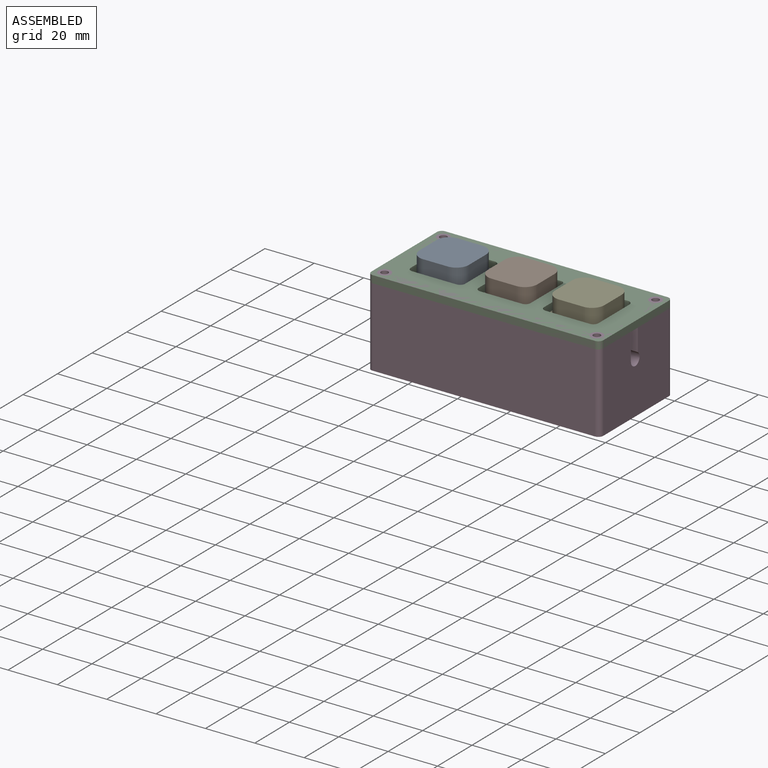
[diagram: assembled view]
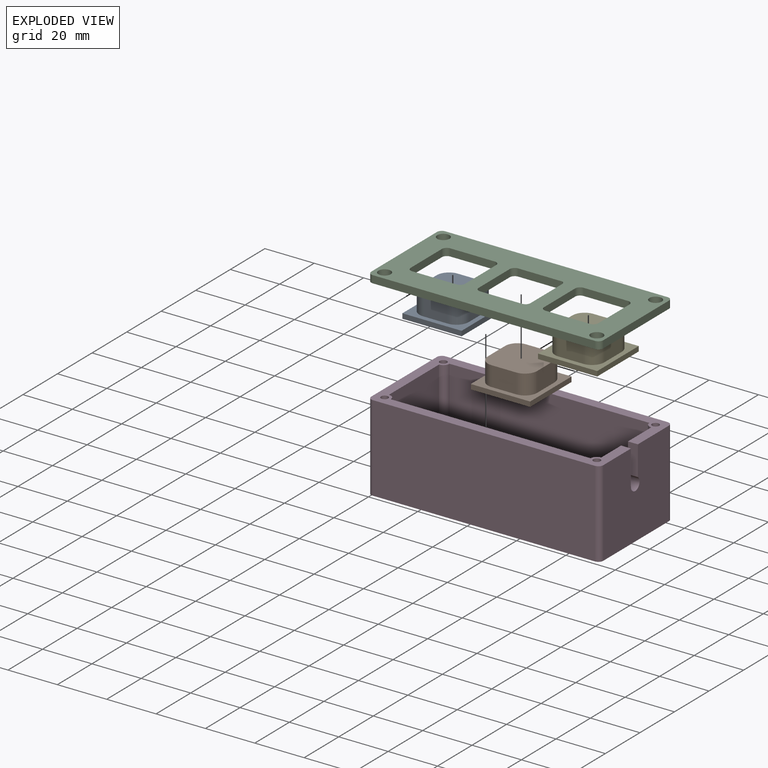
[diagram: exploded view]
GUIDED TOUR — MATED ASSEMBLY (Onshape document 57669e39e4b0887c51382afa, AutoMate assembly 57669e39e4b0887c51382afa_9df764e187c3a58526c253ad_296e1b18f1429ff33e1fbb90_default)

This assembly has 5 components, labeled P0..P4 below (a component is one placed occurrence of a part; the same part can appear more than once), held together by 4 mates. A mate is a constraint between two components; its type names the relative motion it leaves free:
  FASTENED — locks the two components together rigidly (no relative motion),
  PLANAR — leaves sliding in the plane through the listed point (normal = the listed direction) and rotation about that normal free.
Axis/direction vectors are unit vectors and 'through' points are millimeter coordinates, both in the assembly's world frame.

MATES
  1. PLANAR "Planar 4": P1 <-> P2, direction (0.000, 0.000, 1.000) through (-20.85, 15.37, 3.05) mm
  2. FASTENED "Fastened 1": P2 <-> P3, direction (0.000, 0.000, 1.000) through (22.10, 31.81, 6.05) mm
  3. PLANAR "Planar 1": P0 <-> P2, direction (0.000, 0.000, 1.000) through (-48.23, 14.86, 3.05) mm
  4. PLANAR "Planar 2": P4 <-> P2, direction (0.000, 0.000, 1.000) through (-5.23, 26.78, 3.05) mm

ASSEMBLY ORDER
  1. P3 — the base component [order verified]
  2. P0 [order verified]
  3. P1 [order verified]
  4. P4 [order verified]
  5. P2 [order verified]
Order-tag legend:
  [order verified] — this step's position reverses a verified removal order: the component was checked to insert without passing through the ones already placed.

Of the 5 components, 1 carries the full construction recipe — the FeatureScript program that regenerates the part's solid from scratch; the rest are supplied as boundary geometry only.
Each toured component is shown spotlighted twice — in the assembled view, then in the exploded view, where a leader line traces a displaced component back to its assembled socket (saturated green if recipe-attached, orange if geometry-only; every other component desaturated gray) — followed by its recipe or geometry summary and the mates that hold it.
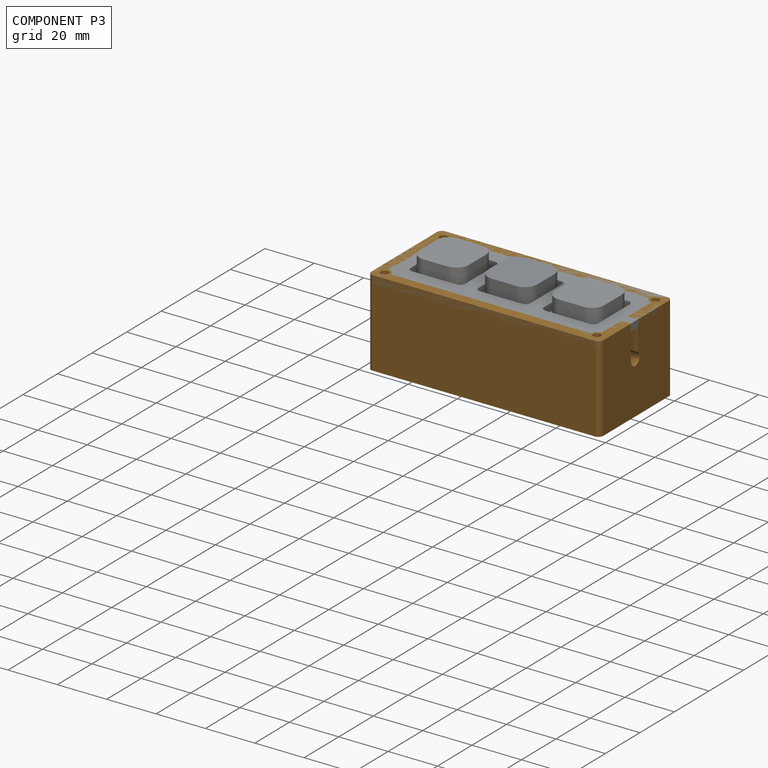
[diagram: component P3 — assembled]
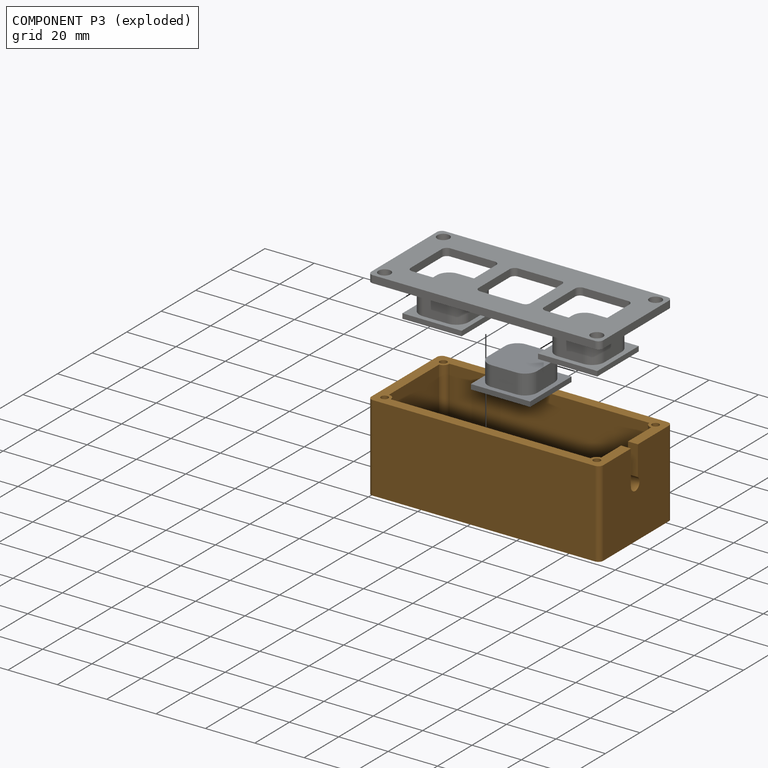
[diagram: component P3 — exploded]
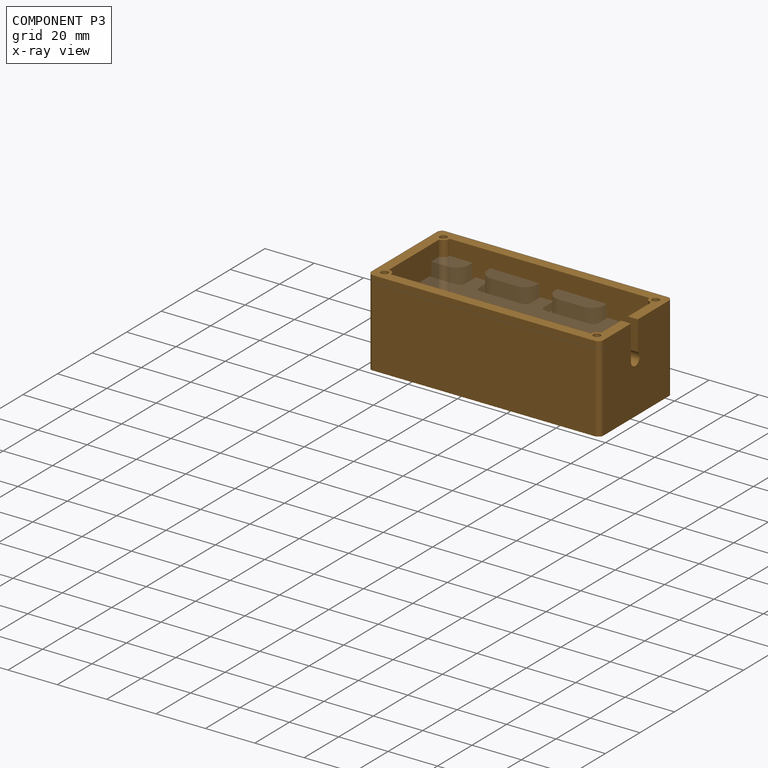
[diagram: component P3 — x-ray view]
COMPONENT P3 — geometry summary (no construction recipe available for this part):
  bounding box: 102.7 x 42.0 x 35.0 mm
  B-rep topology: 1 solid, 39 faces, 204 edges
  volume: 49995 mm^3 (33% of its bounding box)
Held by: FASTENED mate "Fastened 1" to P2.
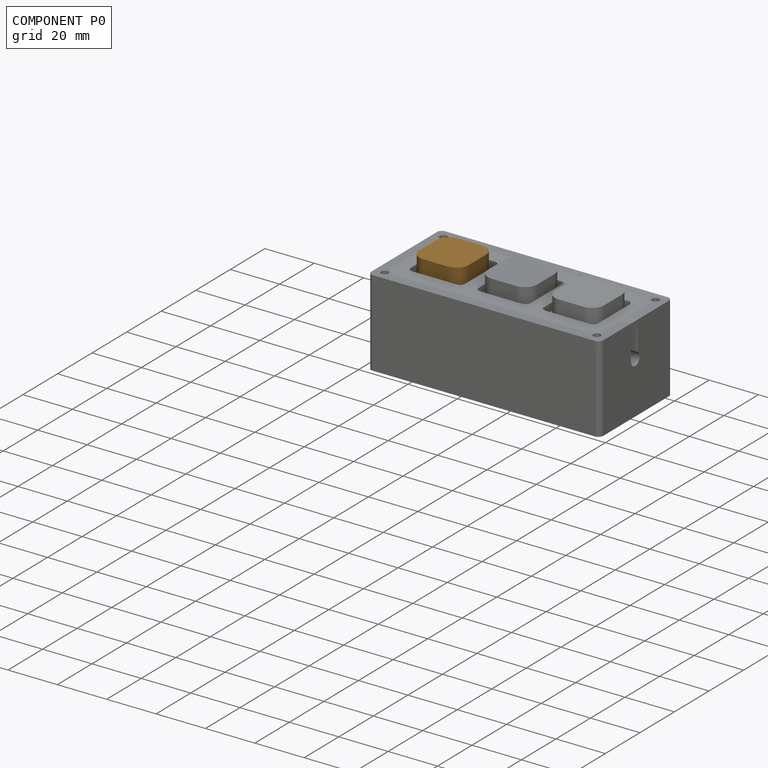
[diagram: component P0 — assembled]
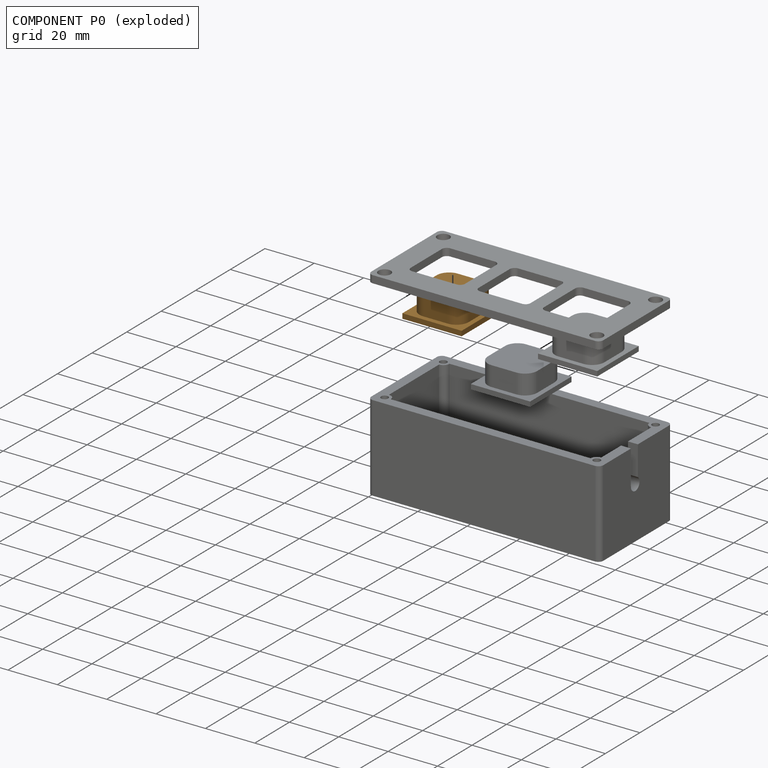
[diagram: component P0 — exploded]
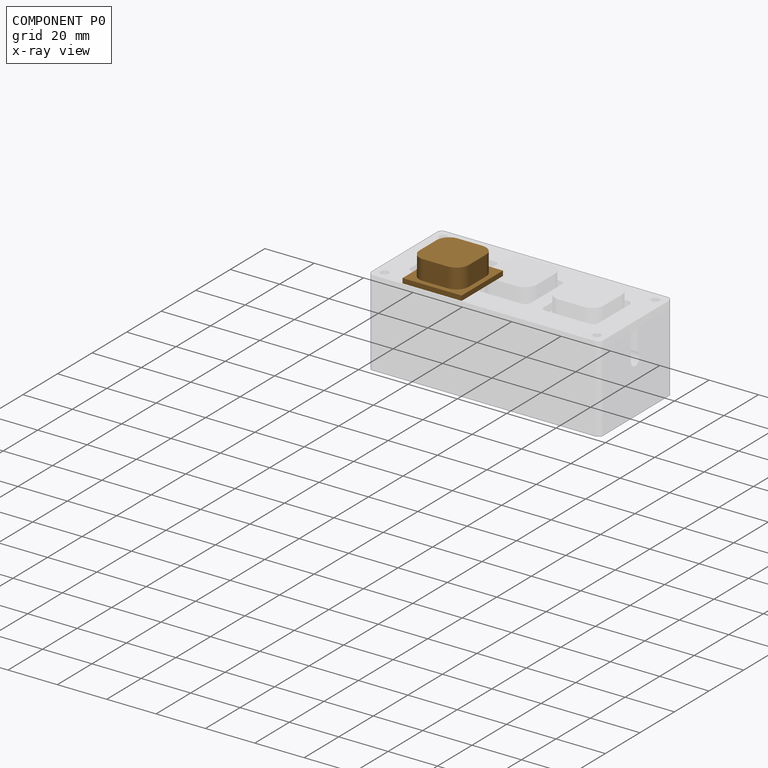
[diagram: component P0 — x-ray view]
COMPONENT P0 — geometry summary (no construction recipe available for this part):
  bounding box: 24.0 x 24.0 x 15.0 mm
  B-rep topology: 1 solid, 24 faces, 120 edges
  volume: 4256 mm^3 (49% of its bounding box)
  symmetry: 4-fold rotationally symmetric about the z axis; mirror-symmetric across its x mid-plane, y mid-plane
Held by: PLANAR mate "Planar 1" to P2.
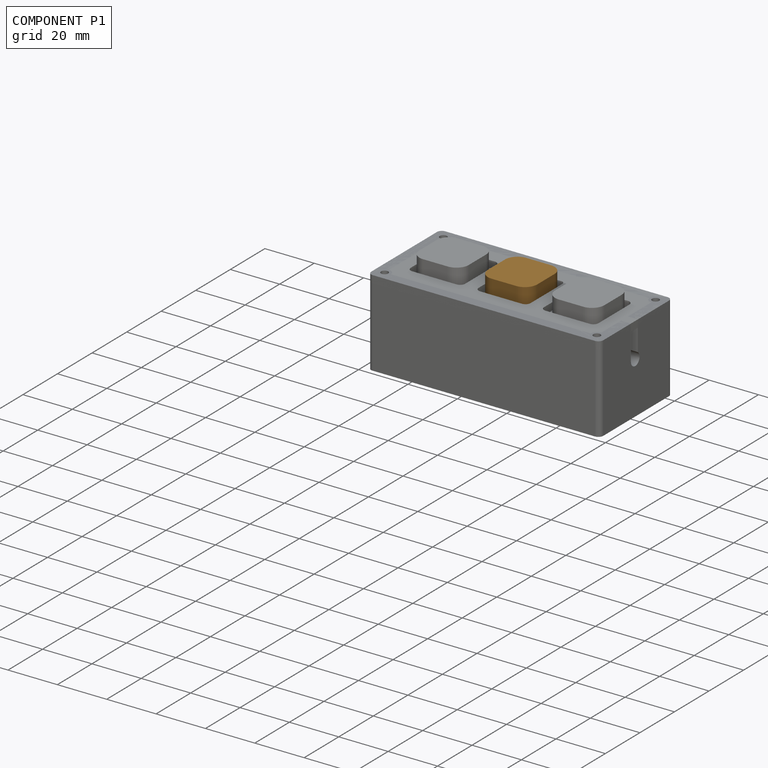
[diagram: component P1 — assembled]
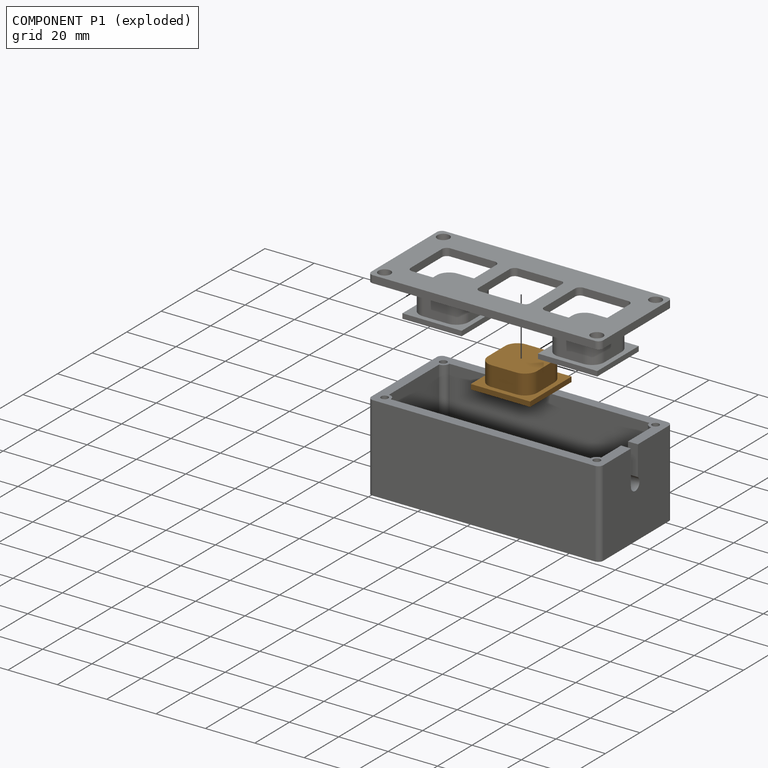
[diagram: component P1 — exploded]
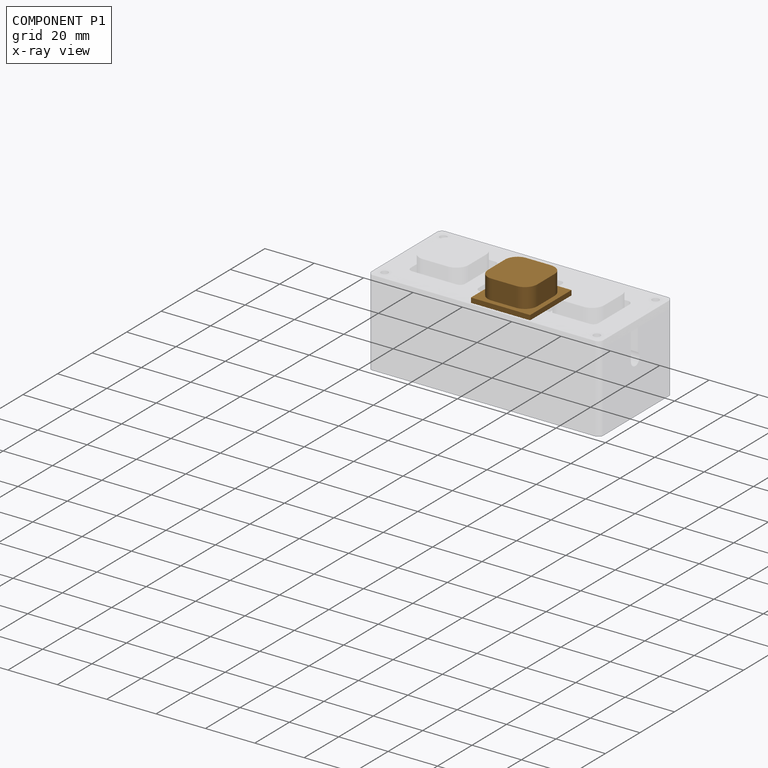
[diagram: component P1 — x-ray view]
COMPONENT P1 — geometry summary (no construction recipe available for this part):
  bounding box: 24.0 x 24.0 x 15.0 mm
  B-rep topology: 1 solid, 24 faces, 120 edges
  volume: 4256 mm^3 (49% of its bounding box)
  symmetry: 4-fold rotationally symmetric about the z axis; mirror-symmetric across its x mid-plane, y mid-plane
Held by: PLANAR mate "Planar 4" to P2.
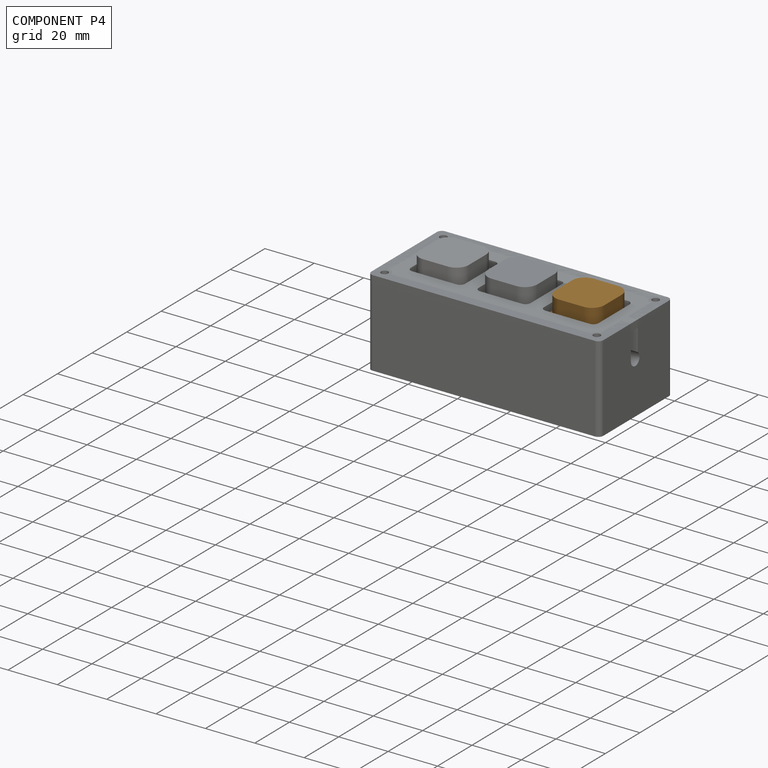
[diagram: component P4 — assembled]
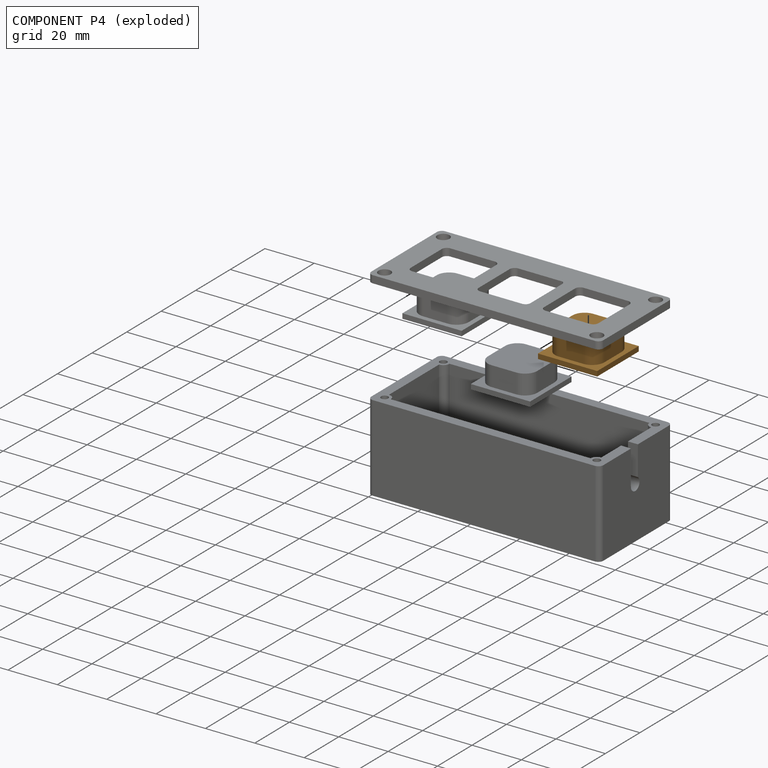
[diagram: component P4 — exploded]
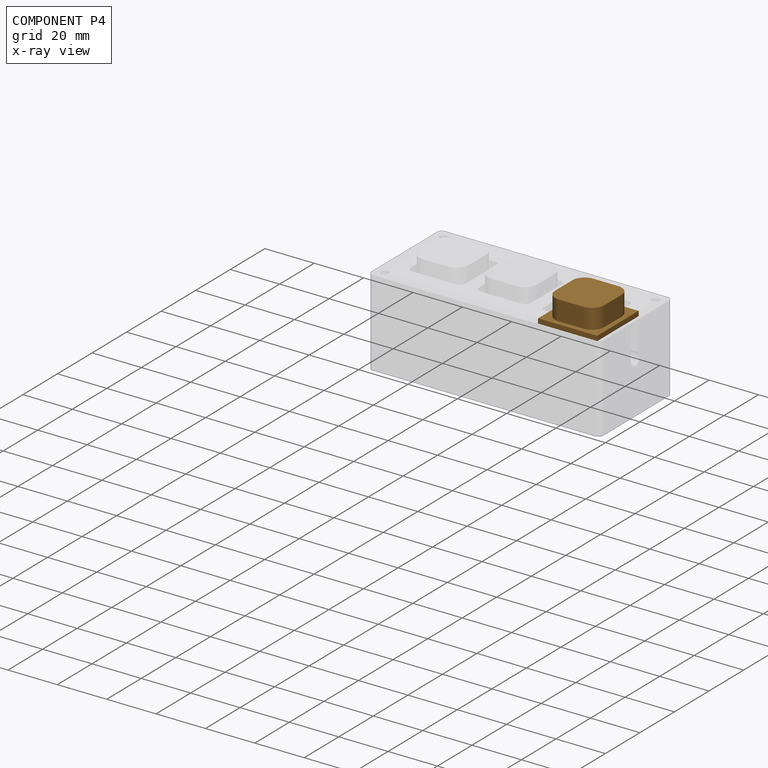
[diagram: component P4 — x-ray view]
COMPONENT P4 — geometry summary (no construction recipe available for this part):
  bounding box: 24.0 x 24.0 x 15.0 mm
  B-rep topology: 1 solid, 24 faces, 120 edges
  volume: 4256 mm^3 (49% of its bounding box)
  symmetry: 4-fold rotationally symmetric about the z axis; mirror-symmetric across its x mid-plane, y mid-plane
Held by: PLANAR mate "Planar 2" to P2.
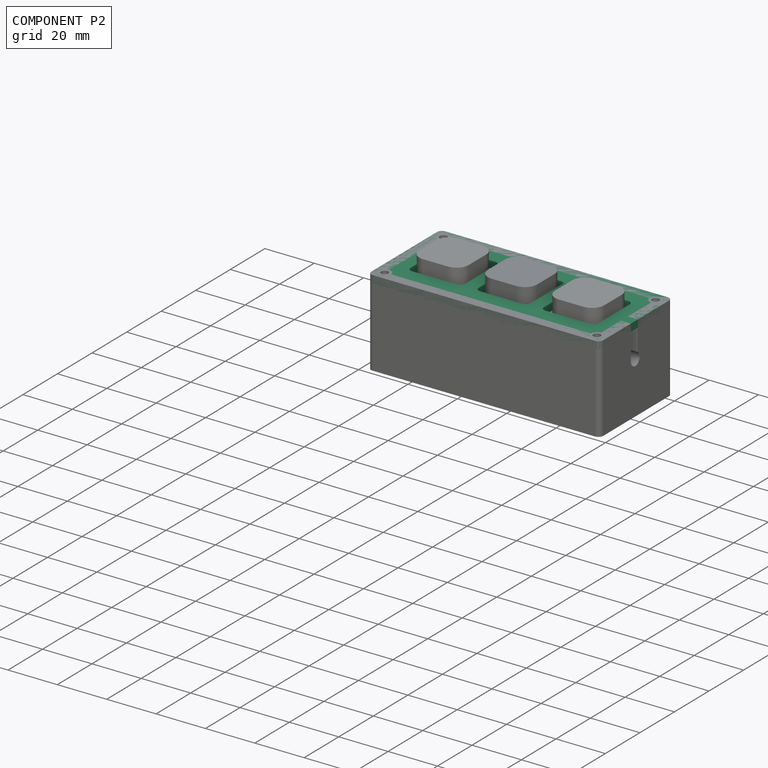
[diagram: component P2 — assembled]
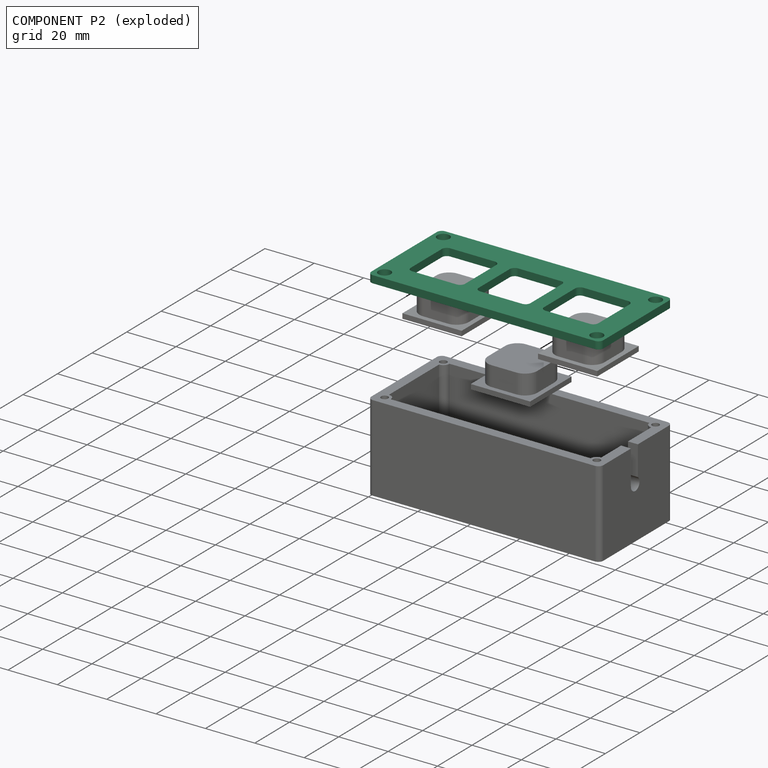
[diagram: component P2 — exploded]
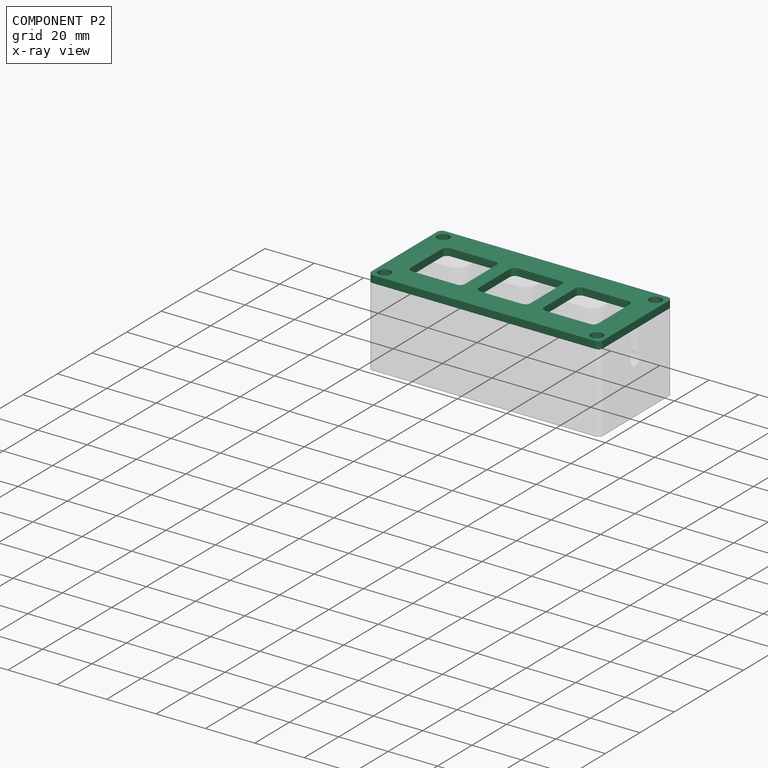
[diagram: component P2 — x-ray view]
COMPONENT P2 — recipe-attached (CADFS 00179519, mesh-verified: the recipe's output STEP matches this component's geometry to below the mesh-comparison resolution (tessellation chordal tolerance ~0.154 mm)).
Held by: PLANAR mate "Planar 4" to P1; FASTENED mate "Fastened 1" to P3; PLANAR mate "Planar 1" to P0; PLANAR mate "Planar 2" to P4.
Construction recipe (FeatureScript — the CAD program that rebuilds this solid; sketch coordinates are in the units given by the * unit suffixes, e.g. mm):

FeatureScript 1511;
import(path : "onshape/std/geometry.fs", version : "1511.0");
import(path : "onshape/std/common.fs", version : "1511.0");
const mm = millimeter;
const VERTEX = EntityType.VERTEX;
const EDGE = EntityType.EDGE;
const FACE = EntityType.FACE;
const BODY = EntityType.BODY;
function v(x, y){return vector(x, y);}
function OD(order){return orderDisambiguation(order);}
function OSD(set){return originalSetDisambiguation(set);}
function TD(topology){return topologyDisambiguation(topology);}
function TDD(query){return trueDependencyDisambiguation(query);}
function sQuery(a, b, c) {return sketchEntityQuery(a, b, c);}

annotation { "Feature Type Name" : "Feature", "Feature Type Description" : "" }
export const myFeature = defineFeature(function(context is Context, id is Id, definition is map)
    precondition{}
    {
        {
            var Q0;
            Q0=qCreatedBy(makeId("Top.planeOp"),FACE);
            var sketch = newSketch(context, id + "F0", { "sketchPlane" : qUnion([Q0])});
            skLineSegment(sketch, "E0.bottom", {"start": v(47, 0) * mm, "end": v(-43, 0) * mm});
            skLineSegment(sketch, "E0.top", {"start": v(47, 42) * mm, "end": v(-43, 42) * mm});
            skLineSegment(sketch, "E0.left", {"start": v(49, 2) * mm, "end": v(49, 40) * mm});
            skLineSegment(sketch, "E0.right", {"start": v(-45, 2) * mm, "end": v(-45, 40) * mm});
            skLineSegment(sketch, "E1.bottom", {"start": v(-34, 32) * mm, "end": v(-16, 32) * mm});
            skLineSegment(sketch, "E1.top", {"start": v(-34, 10) * mm, "end": v(-16, 10) * mm});
            skLineSegment(sketch, "E1.left", {"start": v(-36, 30) * mm, "end": v(-36, 12) * mm});
            skLineSegment(sketch, "E1.right", {"start": v(-14, 30) * mm, "end": v(-14, 12) * mm});
            skLineSegment(sketch, "E2.bottom", {"start": v(20, 32) * mm, "end": v(38, 32) * mm});
            skLineSegment(sketch, "E2.top", {"start": v(20, 10) * mm, "end": v(38, 10) * mm});
            skLineSegment(sketch, "E2.left", {"start": v(18, 30) * mm, "end": v(18, 12) * mm});
            skLineSegment(sketch, "E2.right", {"start": v(40, 30) * mm, "end": v(40, 12) * mm});
            skLineSegment(sketch, "E3.left", {"start": v(-10.4, -34.5) * mm, "end": v(-10.4, -34.5) * mm});
            skLineSegment(sketch, "E3.right", {"start": v(9.6, -34.5) * mm, "end": v(9.6, -34.5) * mm});
            skPoint(sketch, "E4.visualSharp", {"position": v(-45, 42) * mm});
            skArc(sketch, "E4.filletArc", {"start": v(-43, 42) * mm, "mid": v(-44.41, 41.41) * mm, "end": v(-45, 40) * mm});
            skPoint(sketch, "E5.visualSharp", {"position": v(49, 42) * mm});
            skArc(sketch, "E5.filletArc", {"start": v(49, 40) * mm, "mid": v(48.41, 41.41) * mm, "end": v(47, 42) * mm});
            skPoint(sketch, "E6.visualSharp", {"position": v(49, 0) * mm});
            skArc(sketch, "E6.filletArc", {"start": v(47, 0) * mm, "mid": v(48.41, 0.59) * mm, "end": v(49, 2) * mm});
            skPoint(sketch, "E7.visualSharp", {"position": v(-45, 0) * mm});
            skArc(sketch, "E7.filletArc", {"start": v(-45, 2) * mm, "mid": v(-44.41, 0.59) * mm, "end": v(-43, 0) * mm});
            skPoint(sketch, "E8.visualSharp", {"position": v(40, 31) * mm});
            skArc(sketch, "E8.filletArc", {"start": v(40, 30) * mm, "mid": v(39.41, 31.41) * mm, "end": v(38, 32) * mm});
            skPoint(sketch, "E9.visualSharp", {"position": v(40, 10) * mm});
            skArc(sketch, "E9.filletArc", {"start": v(38, 10) * mm, "mid": v(39.41, 10.59) * mm, "end": v(40, 12) * mm});
            skPoint(sketch, "E10.visualSharp", {"position": v(18, 10) * mm});
            skArc(sketch, "E10.filletArc", {"start": v(18, 12) * mm, "mid": v(18.59, 10.59) * mm, "end": v(20, 10) * mm});
            skPoint(sketch, "E11.visualSharp", {"position": v(18, 32) * mm});
            skArc(sketch, "E11.filletArc", {"start": v(20, 32) * mm, "mid": v(18.59, 31.41) * mm, "end": v(18, 30) * mm});
            skPoint(sketch, "E12.visualSharp", {"position": v(-37, 32) * mm});
            skArc(sketch, "E12.filletArc", {"start": v(-34, 32) * mm, "mid": v(-35.41, 31.41) * mm, "end": v(-36, 30) * mm});
            skPoint(sketch, "E13.visualSharp", {"position": v(-36, 10) * mm});
            skArc(sketch, "E13.filletArc", {"start": v(-36, 12) * mm, "mid": v(-35.41, 10.59) * mm, "end": v(-34, 10) * mm});
            skPoint(sketch, "E14.visualSharp", {"position": v(-14, 10) * mm});
            skArc(sketch, "E14.filletArc", {"start": v(-16, 10) * mm, "mid": v(-14.59, 10.59) * mm, "end": v(-14, 12) * mm});
            skPoint(sketch, "E15.visualSharp", {"position": v(-14, 32) * mm});
            skArc(sketch, "E15.filletArc", {"start": v(-14, 30) * mm, "mid": v(-14.59, 31.41) * mm, "end": v(-16, 32) * mm});
            skCircle(sketch, "E16", {"center": v(-41, 4) * mm, "radius": 2.5 * mm});
            skCircle(sketch, "E17", {"center": v(45, 4) * mm, "radius": 2.5 * mm});
            skCircle(sketch, "E18", {"center": v(45, 38) * mm, "radius": 2.5 * mm});
            skCircle(sketch, "E19", {"center": v(-41, 38) * mm, "radius": 2.5 * mm});
            skLineSegment(sketch, "E20.bottom", {"start": v(-6.5, 32) * mm, "end": v(11.5, 32) * mm});
            skLineSegment(sketch, "E20.top", {"start": v(-6.5, 10) * mm, "end": v(10.5, 10) * mm});
            skLineSegment(sketch, "E20.left", {"start": v(-8.5, 30) * mm, "end": v(-8.5, 12) * mm});
            skLineSegment(sketch, "E20.right", {"start": v(12.5, 30.27) * mm, "end": v(12.5, 12) * mm});
            skPoint(sketch, "E21.visualSharp", {"position": v(-8.5, 32) * mm});
            skArc(sketch, "E21.filletArc", {"start": v(-6.5, 32) * mm, "mid": v(-7.91, 31.41) * mm, "end": v(-8.5, 30) * mm});
            skPoint(sketch, "E22.visualSharp", {"position": v(-8.5, 10) * mm});
            skArc(sketch, "E22.filletArc", {"start": v(-8.5, 12) * mm, "mid": v(-7.91, 10.59) * mm, "end": v(-6.5, 10) * mm});
            skPoint(sketch, "E23.visualSharp", {"position": v(12.5, 10) * mm});
            skArc(sketch, "E23.filletArc", {"start": v(10.5, 10) * mm, "mid": v(11.91, 10.59) * mm, "end": v(12.5, 12) * mm});
            skPoint(sketch, "E24.visualSharp", {"position": v(12.5, 31) * mm});
            skArc(sketch, "E24.filletArc", {"start": v(12.5, 30.27) * mm, "mid": v(12.23, 31.27) * mm, "end": v(11.5, 32) * mm});
            skSolve(sketch);
        }
        {
            var Q0;
            Q0=makeQuery(id+"F0.imprint","IMPRINT",FACE,{"disambiguationData":[TD([[makeQuery(id+"F0.imprint","IMPRINT",EDGE,{"derivedFrom":sQuery(id+"F0.wireOp",EDGE,"E0.bottom")}),-1.0]])]});
            extrude(context, id + "F1", {"entities" : qUnion([Q0]), "depth" : 3 * mm});
        }
    });
PROVENANCE & LICENSES
Assembly (occurrences, transforms, mates, per-part STEP geometry): AutoMate dataset, Zenodo record 7776208, CC0.
Construction recipes: CADFS (HuggingFace VladPyatov/CADFS, CC-BY-4.0, layered over the ABC dataset), FeatureScript reconstruction programs keyed by ABC model id.
Join: ABC meta listings map ABC model id -> Onshape documentId; within a shared document, parts are matched by geometric signature (bounding-box dims + volume at 0.1% relative tolerance, exact B-rep face/solid counts).
Verification: 1 of this assembly's 5 components carries a recipe attachment, and every attachment is mesh-verified: the CADFS STEP and the AutoMate member STEP were compared as meshes in their shared local frame (symmetric sampled-point-to-mesh distance); worst across the 1 attachment: below the mesh-comparison resolution (tessellation chordal tolerance ~0.154 mm) on a 103 mm part.
Renders: orthographic iso camera (az 35 / el 25); the floor grid conveys scale (grid pitch printed in each image; no ruler). In the exploded view each component is displaced by its stored offset vector: the offsets alone carry the explosion direction (mate normal/axis signs are not orientation cues and do not encode it), and separation distances are assigned per mate-chain, not proportionally to assembly-order depth.
